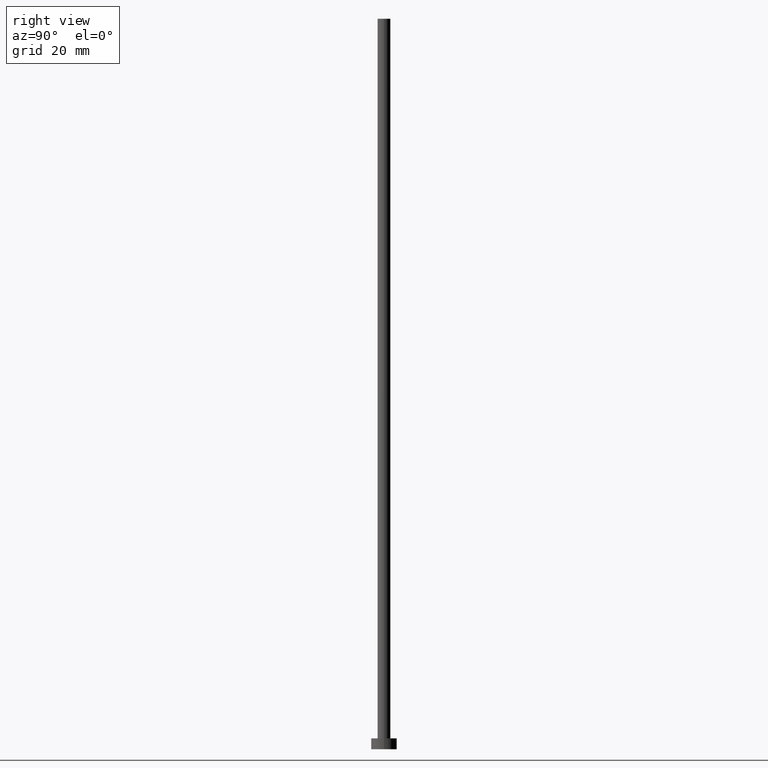
[diagram: clean part render]
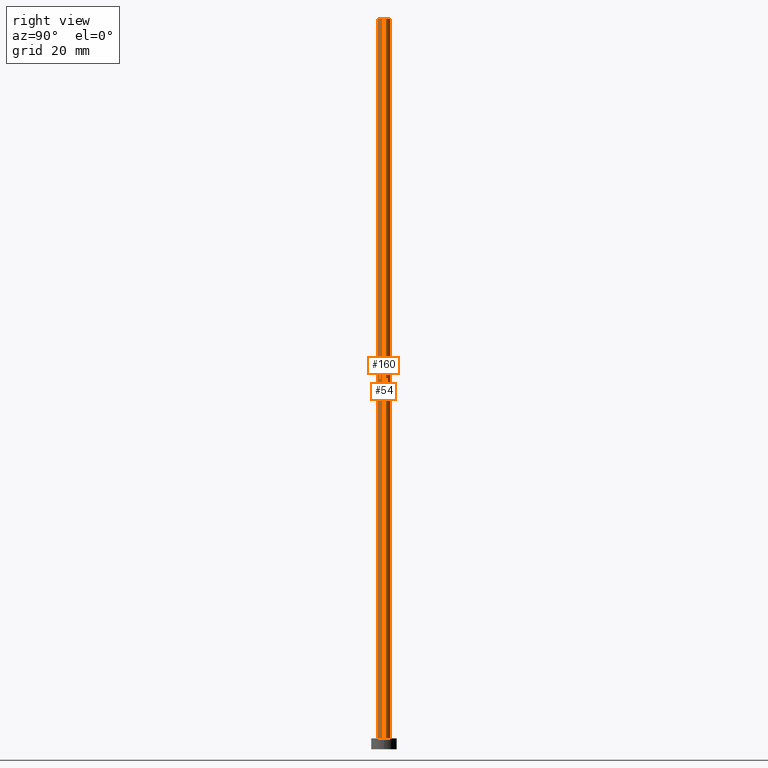
[diagram: same view with one multi-face feature highlighted, each face labeled with its STEP entity id]
A machine part, right view. The highlighted faces form ONE feature: a constant-radius fillet chain: 2 tangent blend faces with common blend radius 1.75 mm. The faces share edges in the B-rep.
Their STEP definitions:
[1] entity #160 (Cylinder):
#1 = ORIENTED_EDGE ( 'NONE', *, *, #119, .T. ) ;
#6 = LINE ( 'NONE', #56, #9 ) ;
#8 = CARTESIAN_POINT ( 'NONE',  ( 1.750000000000000000, 2.143131898507868297E-16, 200.0000000000000000 ) ) ;
#9 = VECTOR ( 'NONE', #190, 1000.000000000000000 ) ;
#19 = VERTEX_POINT ( 'NONE', #65 ) ;
#35 = CIRCLE ( 'NONE', #178, 1.750000000000000000 ) ;
#36 = CARTESIAN_POINT ( 'NONE',  ( -1.750000000000000000, 0.000000000000000000, 3.000000000000000000 ) ) ;
#40 = DIRECTION ( 'NONE',  ( 0.000000000000000000, 0.000000000000000000, 1.000000000000000000 ) ) ;
#46 = VERTEX_POINT ( 'NONE', #144 ) ;
#56 = CARTESIAN_POINT ( 'NONE',  ( -1.750000000000000000, 0.000000000000000000, 200.0000000000000000 ) ) ;
#58 = VERTEX_POINT ( 'NONE', #36 ) ;
#65 = CARTESIAN_POINT ( 'NONE',  ( 1.750000000000000000, 2.143131898507868297E-16, 3.000000000000000000 ) ) ;
#66 = DIRECTION ( 'NONE',  ( 0.000000000000000000, 0.000000000000000000, 1.000000000000000000 ) ) ;
#75 = EDGE_CURVE ( 'NONE', #194, #19, #152, .T. ) ;
#76 = FACE_OUTER_BOUND ( 'NONE', #99, .T. ) ;
#82 = ORIENTED_EDGE ( 'NONE', *, *, #219, .F. ) ;
#99 = EDGE_LOOP ( 'NONE', ( #158, #82, #1, #156 ) ) ;
#103 = CYLINDRICAL_SURFACE ( 'NONE', #188, 1.750000000000000000 ) ;
#119 = EDGE_CURVE ( 'NONE', #46, #58, #6, .T. ) ;
#123 = VECTOR ( 'NONE', #184, 1000.000000000000000 ) ;
#135 = EDGE_CURVE ( 'NONE', #58, #19, #248, .T. ) ;
#138 = CARTESIAN_POINT ( 'NONE',  ( 0.000000000000000000, 0.000000000000000000, 3.000000000000000000 ) ) ;
#144 = CARTESIAN_POINT ( 'NONE',  ( -1.750000000000000000, 0.000000000000000000, 200.0000000000000000 ) ) ;
#152 = LINE ( 'NONE', #8, #123 ) ;
#156 = ORIENTED_EDGE ( 'NONE', *, *, #135, .T. ) ;
#158 = ORIENTED_EDGE ( 'NONE', *, *, #75, .F. ) ;
#160 = ADVANCED_FACE ( 'NONE', ( #76 ), #103, .T. ) ;
#163 = DIRECTION ( 'NONE',  ( 1.000000000000000000, 0.000000000000000000, 0.000000000000000000 ) ) ;
#178 = AXIS2_PLACEMENT_3D ( 'NONE', #235, #66, #163 ) ;
#184 = DIRECTION ( 'NONE',  ( -0.000000000000000000, -0.000000000000000000, -1.000000000000000000 ) ) ;
#188 = AXIS2_PLACEMENT_3D ( 'NONE', #191, #195, #247 ) ;
#190 = DIRECTION ( 'NONE',  ( -0.000000000000000000, -0.000000000000000000, -1.000000000000000000 ) ) ;
#191 = CARTESIAN_POINT ( 'NONE',  ( 0.000000000000000000, 0.000000000000000000, 200.0000000000000000 ) ) ;
#194 = VERTEX_POINT ( 'NONE', #214 ) ;
#195 = DIRECTION ( 'NONE',  ( -0.000000000000000000, -0.000000000000000000, -1.000000000000000000 ) ) ;
#214 = CARTESIAN_POINT ( 'NONE',  ( 1.750000000000000000, 2.143131898507868297E-16, 200.0000000000000000 ) ) ;
#219 = EDGE_CURVE ( 'NONE', #46, #194, #35, .T. ) ;
#223 = AXIS2_PLACEMENT_3D ( 'NONE', #138, #40, #249 ) ;
#235 = CARTESIAN_POINT ( 'NONE',  ( 0.000000000000000000, 0.000000000000000000, 200.0000000000000000 ) ) ;
#247 = DIRECTION ( 'NONE',  ( -1.000000000000000000, 0.000000000000000000, 0.000000000000000000 ) ) ;
#248 = CIRCLE ( 'NONE', #223, 1.750000000000000000 ) ;
#249 = DIRECTION ( 'NONE',  ( 1.000000000000000000, 0.000000000000000000, 0.000000000000000000 ) ) ;
[2] entity #54 (Cylinder):
#6 = LINE ( 'NONE', #56, #9 ) ;
#8 = CARTESIAN_POINT ( 'NONE',  ( 1.750000000000000000, 2.143131898507868297E-16, 200.0000000000000000 ) ) ;
#9 = VECTOR ( 'NONE', #190, 1000.000000000000000 ) ;
#13 = CIRCLE ( 'NONE', #81, 1.750000000000000000 ) ;
#19 = VERTEX_POINT ( 'NONE', #65 ) ;
#20 = DIRECTION ( 'NONE',  ( 0.000000000000000000, 0.000000000000000000, 1.000000000000000000 ) ) ;
#36 = CARTESIAN_POINT ( 'NONE',  ( -1.750000000000000000, 0.000000000000000000, 3.000000000000000000 ) ) ;
#39 = FACE_OUTER_BOUND ( 'NONE', #198, .T. ) ;
#46 = VERTEX_POINT ( 'NONE', #144 ) ;
#54 = ADVANCED_FACE ( 'NONE', ( #39 ), #176, .T. ) ;
#55 = DIRECTION ( 'NONE',  ( 1.000000000000000000, 0.000000000000000000, 0.000000000000000000 ) ) ;
#56 = CARTESIAN_POINT ( 'NONE',  ( -1.750000000000000000, 0.000000000000000000, 200.0000000000000000 ) ) ;
#58 = VERTEX_POINT ( 'NONE', #36 ) ;
#63 = AXIS2_PLACEMENT_3D ( 'NONE', #120, #20, #96 ) ;
#65 = CARTESIAN_POINT ( 'NONE',  ( 1.750000000000000000, 2.143131898507868297E-16, 3.000000000000000000 ) ) ;
#75 = EDGE_CURVE ( 'NONE', #194, #19, #152, .T. ) ;
#81 = AXIS2_PLACEMENT_3D ( 'NONE', #224, #193, #55 ) ;
#84 = ORIENTED_EDGE ( 'NONE', *, *, #75, .T. ) ;
#96 = DIRECTION ( 'NONE',  ( 1.000000000000000000, 0.000000000000000000, 0.000000000000000000 ) ) ;
#108 = CIRCLE ( 'NONE', #63, 1.750000000000000000 ) ;
#119 = EDGE_CURVE ( 'NONE', #46, #58, #6, .T. ) ;
#120 = CARTESIAN_POINT ( 'NONE',  ( 0.000000000000000000, 0.000000000000000000, 3.000000000000000000 ) ) ;
#121 = DIRECTION ( 'NONE',  ( -1.000000000000000000, 0.000000000000000000, 0.000000000000000000 ) ) ;
#123 = VECTOR ( 'NONE', #184, 1000.000000000000000 ) ;
#137 = DIRECTION ( 'NONE',  ( -0.000000000000000000, -0.000000000000000000, -1.000000000000000000 ) ) ;
#141 = EDGE_CURVE ( 'NONE', #19, #58, #108, .T. ) ;
#144 = CARTESIAN_POINT ( 'NONE',  ( -1.750000000000000000, 0.000000000000000000, 200.0000000000000000 ) ) ;
#152 = LINE ( 'NONE', #8, #123 ) ;
#170 = EDGE_CURVE ( 'NONE', #194, #46, #13, .T. ) ;
#176 = CYLINDRICAL_SURFACE ( 'NONE', #212, 1.750000000000000000 ) ;
#179 = ORIENTED_EDGE ( 'NONE', *, *, #119, .F. ) ;
#184 = DIRECTION ( 'NONE',  ( -0.000000000000000000, -0.000000000000000000, -1.000000000000000000 ) ) ;
#190 = DIRECTION ( 'NONE',  ( -0.000000000000000000, -0.000000000000000000, -1.000000000000000000 ) ) ;
#193 = DIRECTION ( 'NONE',  ( 0.000000000000000000, 0.000000000000000000, 1.000000000000000000 ) ) ;
#194 = VERTEX_POINT ( 'NONE', #214 ) ;
#198 = EDGE_LOOP ( 'NONE', ( #254, #84, #216, #179 ) ) ;
#212 = AXIS2_PLACEMENT_3D ( 'NONE', #230, #137, #121 ) ;
#214 = CARTESIAN_POINT ( 'NONE',  ( 1.750000000000000000, 2.143131898507868297E-16, 200.0000000000000000 ) ) ;
#216 = ORIENTED_EDGE ( 'NONE', *, *, #141, .T. ) ;
#224 = CARTESIAN_POINT ( 'NONE',  ( 0.000000000000000000, 0.000000000000000000, 200.0000000000000000 ) ) ;
#230 = CARTESIAN_POINT ( 'NONE',  ( 0.000000000000000000, 0.000000000000000000, 200.0000000000000000 ) ) ;
#254 = ORIENTED_EDGE ( 'NONE', *, *, #170, .F. ) ;